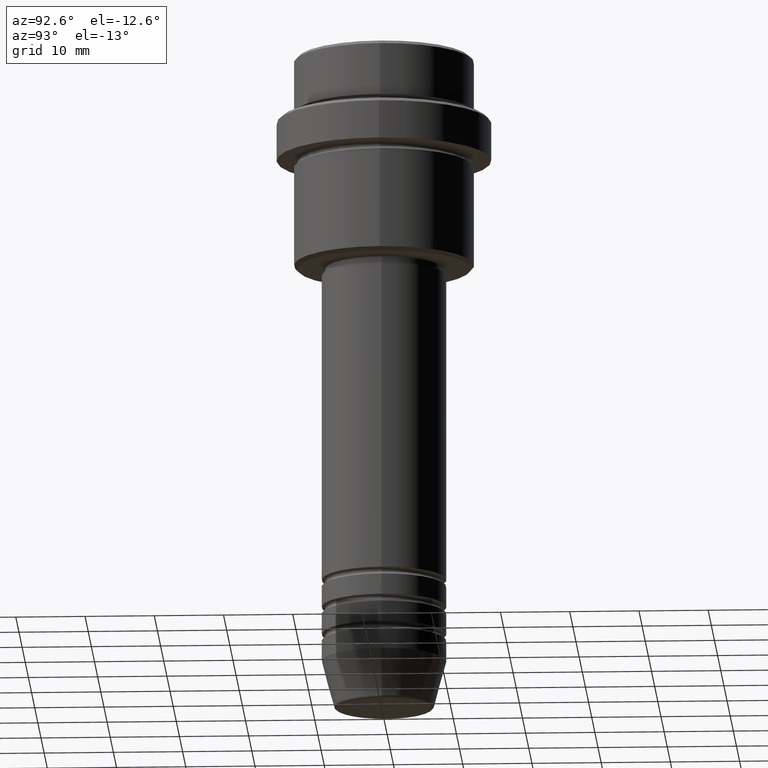
[diagram: clean part render]
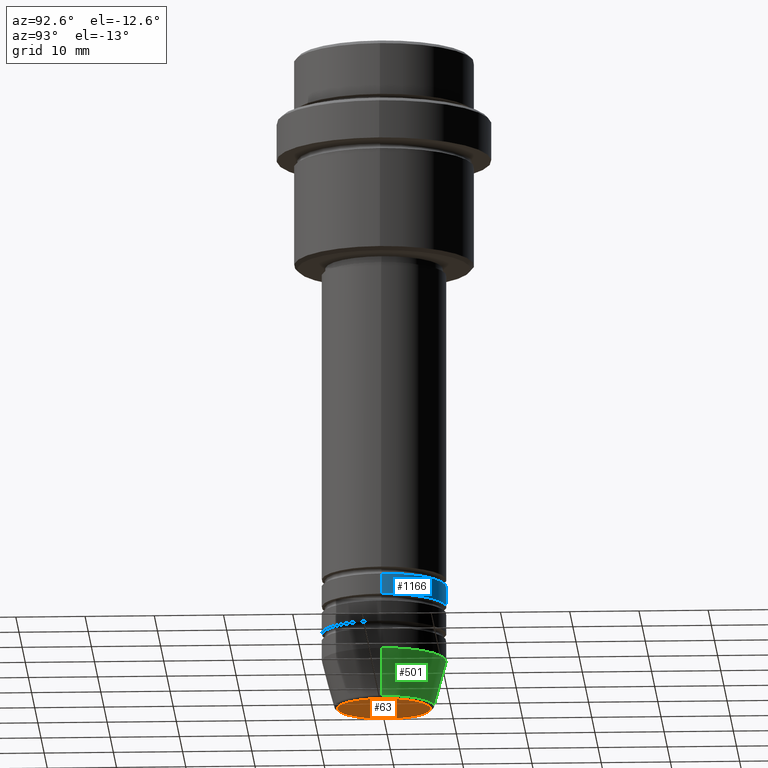
[diagram: same view with three faces highlighted in distinct colors, each labeled with its STEP entity id]
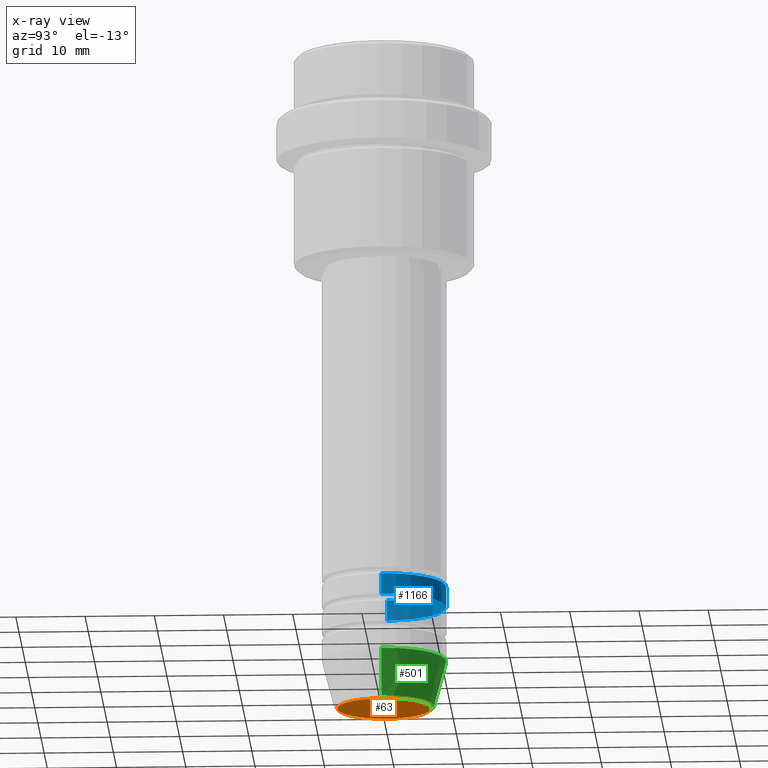
[diagram: x-ray of the same camera — body ghosted, the three highlighted faces saturated]
A machine part, auxiliary view with three faces highlighted in distinct colors.
The next image is the same camera in x-ray (body ghosted, the three faces saturated) — at least one of them is partly hidden behind the body in this view.
Their STEP definitions:

[orange] entity #63 — the highlighted planar face has unit normal (0, -0, 1).
#63 = ADVANCED_FACE ( 'NONE', ( #491 ), #943, .F. ) ;
#64 = CARTESIAN_POINT ( 'NONE',  ( 6.740692158992653837, 0.000000000000000000, -96.00000000000000000 ) ) ;
#157 = AXIS2_PLACEMENT_3D ( 'NONE', #184, #847, #1332 ) ;
#168 = CIRCLE ( 'NONE', #1038, 6.740692158992653837 ) ;
#184 = CARTESIAN_POINT ( 'NONE',  ( 0.000000000000000000, 0.000000000000000000, -96.00000000000000000 ) ) ;
#234 = CARTESIAN_POINT ( 'NONE',  ( -6.740692158992653837, 8.550696569392682723E-16, -96.00000000000000000 ) ) ;
#358 = VERTEX_POINT ( 'NONE', #64 ) ;
#462 = EDGE_CURVE ( 'NONE', #718, #358, #1028, .T. ) ;
#491 = FACE_OUTER_BOUND ( 'NONE', #509, .T. ) ;
#509 = EDGE_LOOP ( 'NONE', ( #927, #1301 ) ) ;
#589 = CARTESIAN_POINT ( 'NONE',  ( 0.000000000000000000, 0.000000000000000000, -96.00000000000000000 ) ) ;
#681 = DIRECTION ( 'NONE',  ( 0.000000000000000000, 0.000000000000000000, -1.000000000000000000 ) ) ;
#718 = VERTEX_POINT ( 'NONE', #234 ) ;
#847 = DIRECTION ( 'NONE',  ( 0.000000000000000000, 0.000000000000000000, -1.000000000000000000 ) ) ;
#892 = CARTESIAN_POINT ( 'NONE',  ( 0.000000000000000000, 0.000000000000000000, -96.00000000000000000 ) ) ;
#927 = ORIENTED_EDGE ( 'NONE', *, *, #1064, .T. ) ;
#943 = PLANE ( 'NONE',  #1336 ) ;
#1028 = CIRCLE ( 'NONE', #157, 6.740692158992653837 ) ;
#1038 = AXIS2_PLACEMENT_3D ( 'NONE', #892, #681, #1134 ) ;
#1064 = EDGE_CURVE ( 'NONE', #358, #718, #168, .T. ) ;
#1134 = DIRECTION ( 'NONE',  ( 1.000000000000000000, 0.000000000000000000, 0.000000000000000000 ) ) ;
#1301 = ORIENTED_EDGE ( 'NONE', *, *, #462, .T. ) ;
#1332 = DIRECTION ( 'NONE',  ( 1.000000000000000000, 0.000000000000000000, 0.000000000000000000 ) ) ;
#1336 = AXIS2_PLACEMENT_3D ( 'NONE', #589, #1372, #1395 ) ;
#1372 = DIRECTION ( 'NONE',  ( 0.000000000000000000, -0.000000000000000000, 1.000000000000000000 ) ) ;
#1395 = DIRECTION ( 'NONE',  ( 1.000000000000000000, 0.000000000000000000, 0.000000000000000000 ) ) ;

[blue] entity #1166 — the highlighted cylindrical surface (partial cylindrical patch) has radius 9 mm, axis along (-0, -0, 1).
#136 = CARTESIAN_POINT ( 'NONE',  ( 0.000000000000000000, 0.000000000000000000, -77.99999999999987210 ) ) ;
#138 = LINE ( 'NONE', #1113, #869 ) ;
#148 = ORIENTED_EDGE ( 'NONE', *, *, #583, .F. ) ;
#174 = CARTESIAN_POINT ( 'NONE',  ( 0.000000000000000000, 0.000000000000000000, 0.000000000000000000 ) ) ;
#222 = VERTEX_POINT ( 'NONE', #1135 ) ;
#242 = DIRECTION ( 'NONE',  ( -0.000000000000000000, -0.000000000000000000, 1.000000000000000000 ) ) ;
#280 = ORIENTED_EDGE ( 'NONE', *, *, #439, .T. ) ;
#329 = DIRECTION ( 'NONE',  ( -0.000000000000000000, -0.000000000000000000, 1.000000000000000000 ) ) ;
#342 = AXIS2_PLACEMENT_3D ( 'NONE', #136, #556, #1007 ) ;
#345 = ORIENTED_EDGE ( 'NONE', *, *, #540, .T. ) ;
#439 = EDGE_CURVE ( 'NONE', #222, #615, #833, .T. ) ;
#468 = EDGE_LOOP ( 'NONE', ( #345, #280, #713, #148 ) ) ;
#512 = DIRECTION ( 'NONE',  ( -0.000000000000000000, -0.000000000000000000, 1.000000000000000000 ) ) ;
#540 = EDGE_CURVE ( 'NONE', #743, #222, #1168, .T. ) ;
#556 = DIRECTION ( 'NONE',  ( -0.000000000000000000, -0.000000000000000000, 1.000000000000000000 ) ) ;
#576 = VERTEX_POINT ( 'NONE', #777 ) ;
#583 = EDGE_CURVE ( 'NONE', #743, #576, #138, .T. ) ;
#615 = VERTEX_POINT ( 'NONE', #671 ) ;
#663 = CARTESIAN_POINT ( 'NONE',  ( 9.000000000000000000, 0.000000000000000000, -80.99999999999987210 ) ) ;
#671 = CARTESIAN_POINT ( 'NONE',  ( -9.000000000000000000, 1.102182119232617714E-15, -77.99999999999987210 ) ) ;
#713 = ORIENTED_EDGE ( 'NONE', *, *, #753, .F. ) ;
#743 = VERTEX_POINT ( 'NONE', #663 ) ;
#753 = EDGE_CURVE ( 'NONE', #576, #615, #1320, .T. ) ;
#777 = CARTESIAN_POINT ( 'NONE',  ( 9.000000000000000000, 0.000000000000000000, -77.99999999999987210 ) ) ;
#779 = DIRECTION ( 'NONE',  ( 1.000000000000000000, 0.000000000000000000, 0.000000000000000000 ) ) ;
#830 = AXIS2_PLACEMENT_3D ( 'NONE', #174, #512, #1181 ) ;
#833 = LINE ( 'NONE', #1278, #1305 ) ;
#869 = VECTOR ( 'NONE', #329, 1000.000000000000000 ) ;
#1007 = DIRECTION ( 'NONE',  ( 1.000000000000000000, 0.000000000000000000, 0.000000000000000000 ) ) ;
#1052 = AXIS2_PLACEMENT_3D ( 'NONE', #1233, #242, #779 ) ;
#1061 = DIRECTION ( 'NONE',  ( -0.000000000000000000, -0.000000000000000000, 1.000000000000000000 ) ) ;
#1113 = CARTESIAN_POINT ( 'NONE',  ( 9.000000000000000000, 0.000000000000000000, 0.000000000000000000 ) ) ;
#1135 = CARTESIAN_POINT ( 'NONE',  ( -9.000000000000000000, 1.102182119232617714E-15, -80.99999999999987210 ) ) ;
#1161 = FACE_OUTER_BOUND ( 'NONE', #468, .T. ) ;
#1166 = ADVANCED_FACE ( 'NONE', ( #1161 ), #1272, .T. ) ;
#1168 = CIRCLE ( 'NONE', #1052, 9.000000000000000000 ) ;
#1181 = DIRECTION ( 'NONE',  ( 1.000000000000000000, 0.000000000000000000, 0.000000000000000000 ) ) ;
#1233 = CARTESIAN_POINT ( 'NONE',  ( 0.000000000000000000, 0.000000000000000000, -80.99999999999987210 ) ) ;
#1272 = CYLINDRICAL_SURFACE ( 'NONE', #830, 9.000000000000000000 ) ;
#1278 = CARTESIAN_POINT ( 'NONE',  ( -9.000000000000000000, 1.102182119232617714E-15, 0.000000000000000000 ) ) ;
#1305 = VECTOR ( 'NONE', #1061, 1000.000000000000000 ) ;
#1320 = CIRCLE ( 'NONE', #342, 9.000000000000000000 ) ;

[green] entity #501 — the highlighted conical surface has half-angle 15 deg.
#3 = DIRECTION ( 'NONE',  ( 0.2588190451025213501, 0.000000000000000000, 0.9659258262890680902 ) ) ;
#51 = CARTESIAN_POINT ( 'NONE',  ( -7.223655072137189492, 9.934123627281765110E-16, -95.62940952255127058 ) ) ;
#142 = ORIENTED_EDGE ( 'NONE', *, *, #832, .F. ) ;
#165 = AXIS2_PLACEMENT_3D ( 'NONE', #403, #1293, #175 ) ;
#175 = DIRECTION ( 'NONE',  ( 1.000000000000000000, 0.000000000000000000, 0.000000000000000000 ) ) ;
#176 = ORIENTED_EDGE ( 'NONE', *, *, #282, .F. ) ;
#236 = DIRECTION ( 'NONE',  ( -0.2588190451025213501, 3.169619151431772337E-17, 0.9659258262890680902 ) ) ;
#282 = EDGE_CURVE ( 'NONE', #614, #398, #773, .T. ) ;
#308 = AXIS2_PLACEMENT_3D ( 'NONE', #1041, #366, #811 ) ;
#317 = VECTOR ( 'NONE', #236, 1000.000000000000000 ) ;
#366 = DIRECTION ( 'NONE',  ( -0.000000000000000000, -0.000000000000000000, 1.000000000000000000 ) ) ;
#394 = CARTESIAN_POINT ( 'NONE',  ( -9.000000000000000000, 1.102182119232617714E-15, -89.00000000000000000 ) ) ;
#398 = VERTEX_POINT ( 'NONE', #394 ) ;
#403 = CARTESIAN_POINT ( 'NONE',  ( 0.000000000000000000, 0.000000000000000000, -89.00000000000000000 ) ) ;
#448 = CARTESIAN_POINT ( 'NONE',  ( 7.223655072137188604, 0.000000000000000000, -95.62940952255127058 ) ) ;
#482 = AXIS2_PLACEMENT_3D ( 'NONE', #994, #1065, #1324 ) ;
#501 = ADVANCED_FACE ( 'NONE', ( #672 ), #629, .T. ) ;
#614 = VERTEX_POINT ( 'NONE', #784 ) ;
#629 = CONICAL_SURFACE ( 'NONE', #308, 9.000000000000000000, 0.2617993877991500740 ) ;
#672 = FACE_OUTER_BOUND ( 'NONE', #803, .T. ) ;
#673 = ORIENTED_EDGE ( 'NONE', *, *, #1025, .T. ) ;
#773 = CIRCLE ( 'NONE', #165, 9.000000000000000000 ) ;
#784 = CARTESIAN_POINT ( 'NONE',  ( 9.000000000000000000, 0.000000000000000000, -89.00000000000000000 ) ) ;
#790 = EDGE_CURVE ( 'NONE', #1012, #1056, #1180, .T. ) ;
#803 = EDGE_LOOP ( 'NONE', ( #868, #673, #176, #142 ) ) ;
#811 = DIRECTION ( 'NONE',  ( 1.000000000000000000, 0.000000000000000000, 0.000000000000000000 ) ) ;
#832 = EDGE_CURVE ( 'NONE', #1012, #614, #859, .T. ) ;
#859 = LINE ( 'NONE', #1094, #1359 ) ;
#868 = ORIENTED_EDGE ( 'NONE', *, *, #790, .T. ) ;
#994 = CARTESIAN_POINT ( 'NONE',  ( 0.000000000000000000, 0.000000000000000000, -95.62940952255127058 ) ) ;
#1012 = VERTEX_POINT ( 'NONE', #448 ) ;
#1017 = LINE ( 'NONE', #1118, #317 ) ;
#1025 = EDGE_CURVE ( 'NONE', #1056, #398, #1017, .T. ) ;
#1041 = CARTESIAN_POINT ( 'NONE',  ( 0.000000000000000000, 0.000000000000000000, -89.00000000000000000 ) ) ;
#1056 = VERTEX_POINT ( 'NONE', #51 ) ;
#1065 = DIRECTION ( 'NONE',  ( -0.000000000000000000, -0.000000000000000000, 1.000000000000000000 ) ) ;
#1094 = CARTESIAN_POINT ( 'NONE',  ( 9.000000000000000000, 0.000000000000000000, -89.00000000000000000 ) ) ;
#1118 = CARTESIAN_POINT ( 'NONE',  ( -9.000000000000000000, 1.102182119232617714E-15, -89.00000000000000000 ) ) ;
#1180 = CIRCLE ( 'NONE', #482, 7.223655072137188604 ) ;
#1293 = DIRECTION ( 'NONE',  ( -0.000000000000000000, -0.000000000000000000, 1.000000000000000000 ) ) ;
#1324 = DIRECTION ( 'NONE',  ( 1.000000000000000000, 0.000000000000000000, 0.000000000000000000 ) ) ;
#1359 = VECTOR ( 'NONE', #3, 1000.000000000000000 ) ;